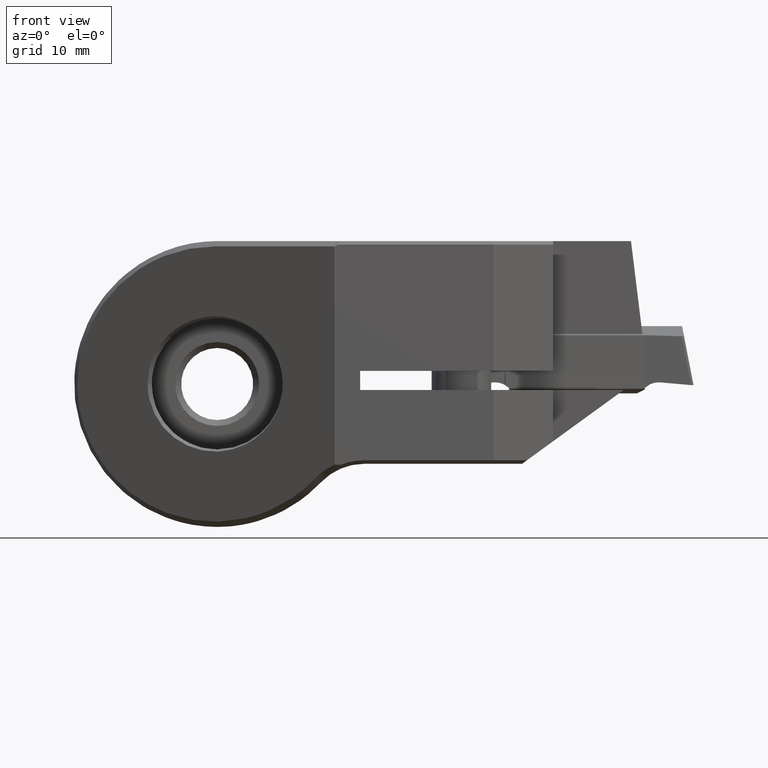
[diagram: clean part render]
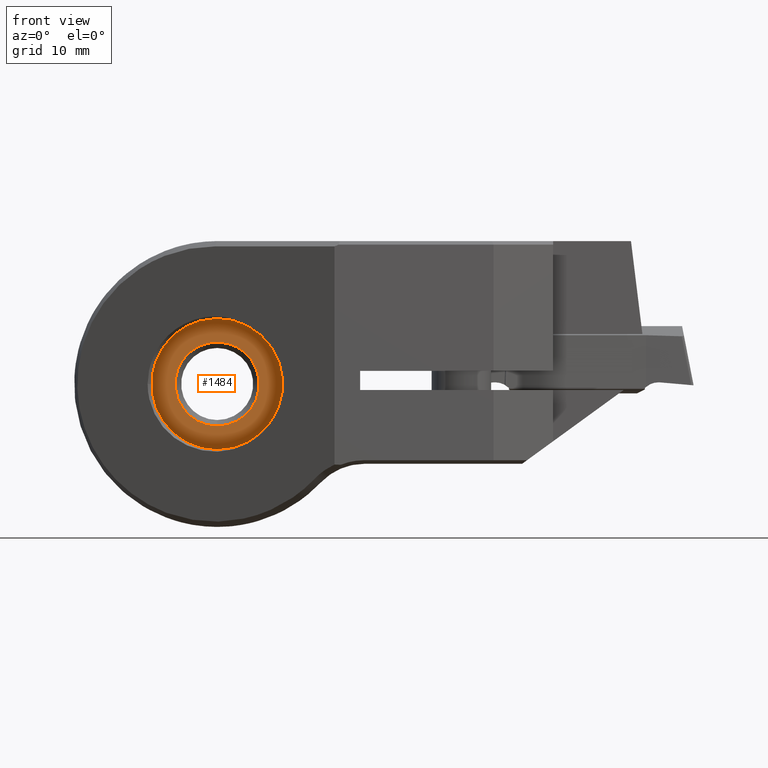
[diagram: same view with one face highlighted and labeled with its STEP entity id]
A machine part, front view. The second image highlights one B-rep face of the part: STEP entity #1484.
In plain terms, the highlighted planar face has unit normal (0, -1, 0).
Its self-contained STEP definition (entity closure, byte-faithful):
#1256=EDGE_CURVE('NONE',#2230,#1868,#2846,.T.);
#1354=EDGE_CURVE('NONE',#1868,#2230,#2953,.F.);
#1484=ADVANCED_FACE('Fl�che3',(#3099,#3100),#3101,.T.);
#1646=VERTEX_POINT('NONE',#3273);
#1868=VERTEX_POINT('NONE',#3514);
#1916=EDGE_CURVE('NONE',#2300,#1646,#3569,.F.);
#2230=VERTEX_POINT('NONE',#3917);
#2234=EDGE_CURVE('NONE',#1646,#2300,#3922,.T.);
#2300=VERTEX_POINT('NONE',#3996);
#2846=CIRCLE('',#5009,5.5);
#2953=CIRCLE('',#5165,5.5);
#3099=FACE_OUTER_BOUND('',#5363,.T.);
#3100=FACE_BOUND('',#5364,.T.);
#3101=PLANE('',#5365);
#3273=CARTESIAN_POINT('',(0.0,-4.1,-3.525));
#3514=CARTESIAN_POINT('',(0.0,-4.1,5.5));
#3569=CIRCLE('',#6217,3.525);
#3917=CARTESIAN_POINT('',(6.73555739531044E-016,-4.1,-5.5));
#3922=CIRCLE('',#6943,3.525);
#3996=CARTESIAN_POINT('',(4.31687996699442E-016,-4.1,3.525));
#5009=AXIS2_PLACEMENT_3D('',#7694,#7695,#7696);
#5165=AXIS2_PLACEMENT_3D('',#7807,#7808,#7809);
#5363=EDGE_LOOP('',(#7968,#7969));
#5364=EDGE_LOOP('',(#7970,#7971));
#5365=AXIS2_PLACEMENT_3D('',#7972,#7973,#7974);
#6217=AXIS2_PLACEMENT_3D('',#8410,#8411,#8412);
#6943=AXIS2_PLACEMENT_3D('',#8814,#8815,#8816);
#7694=CARTESIAN_POINT('',(0.0,-4.1,0.0));
#7695=DIRECTION('',(-0.0,1.0,0.0));
#7696=DIRECTION('',(0.0,0.0,1.0));
#7807=CARTESIAN_POINT('',(0.0,-4.1,0.0));
#7808=DIRECTION('',(0.0,-1.0,0.0));
#7809=DIRECTION('',(0.0,0.0,1.0));
#7968=ORIENTED_EDGE('',*,*,#1354,.F.);
#7969=ORIENTED_EDGE('',*,*,#1256,.F.);
#7970=ORIENTED_EDGE('',*,*,#2234,.T.);
#7971=ORIENTED_EDGE('',*,*,#1916,.T.);
#7972=CARTESIAN_POINT('',(-5.5,-4.1,0.0));
#7973=DIRECTION('',(0.0,-1.0,0.0));
#7974=DIRECTION('',(1.0,0.0,0.0));
#8410=CARTESIAN_POINT('',(0.0,-4.1,0.0));
#8411=DIRECTION('',(0.0,-1.0,0.0));
#8412=DIRECTION('',(0.0,0.0,-1.0));
#8814=CARTESIAN_POINT('',(0.0,-4.1,0.0));
#8815=DIRECTION('',(0.0,1.0,0.0));
#8816=DIRECTION('',(0.0,0.0,-1.0));